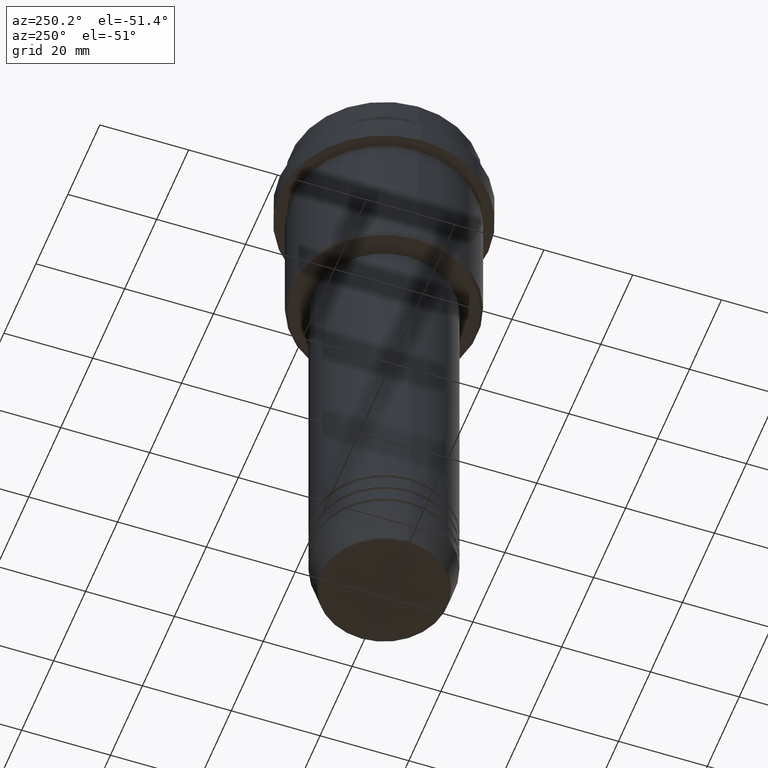
[diagram: clean part render]
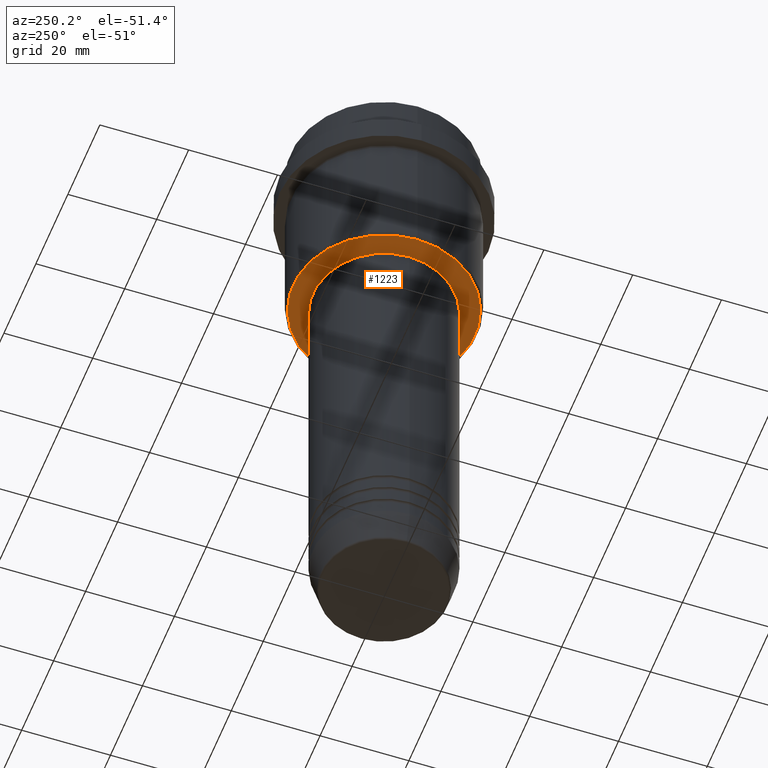
[diagram: same view with one face highlighted and labeled with its STEP entity id]
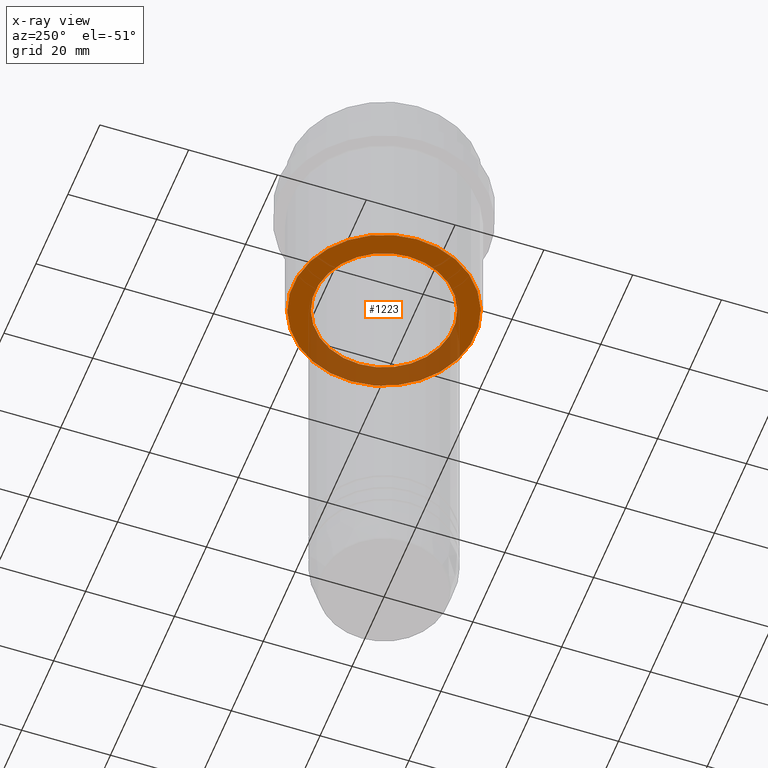
[diagram: x-ray of the same camera — body ghosted, the highlighted face saturated]
A machine part, auxiliary view. The second image highlights one B-rep face of the part: STEP entity #1223.
The next image is the same camera in x-ray: the body ghosted, the highlighted face saturated — about 34% of this face is hidden behind the body in this view.
In plain terms, the highlighted planar face has unit normal (0, 0, -1).
Its self-contained STEP definition (entity closure, byte-faithful):
#17 = ORIENTED_EDGE ( 'NONE', *, *, #367, .T. ) ;
#28 = CIRCLE ( 'NONE', #751, 15.49999999999999645 ) ;
#34 = DIRECTION ( 'NONE',  ( 1.000000000000000000, 0.000000000000000000, 0.000000000000000000 ) ) ;
#123 = CIRCLE ( 'NONE', #257, 20.49999999999997513 ) ;
#167 = ORIENTED_EDGE ( 'NONE', *, *, #1293, .T. ) ;
#198 = EDGE_LOOP ( 'NONE', ( #17, #723 ) ) ;
#201 = DIRECTION ( 'NONE',  ( 0.000000000000000000, 0.000000000000000000, -1.000000000000000000 ) ) ;
#206 = CARTESIAN_POINT ( 'NONE',  ( -15.49999999999999645, 1.898202538678397163E-15, -45.00000000000001421 ) ) ;
#257 = AXIS2_PLACEMENT_3D ( 'NONE', #1407, #548, #658 ) ;
#317 = PLANE ( 'NONE',  #769 ) ;
#367 = EDGE_CURVE ( 'NONE', #829, #875, #672, .T. ) ;
#424 = DIRECTION ( 'NONE',  ( -1.000000000000000000, 0.000000000000000000, 0.000000000000000000 ) ) ;
#440 = DIRECTION ( 'NONE',  ( -0.000000000000000000, -0.000000000000000000, 1.000000000000000000 ) ) ;
#498 = CIRCLE ( 'NONE', #755, 20.49999999999997513 ) ;
#548 = DIRECTION ( 'NONE',  ( 0.000000000000000000, 0.000000000000000000, -1.000000000000000000 ) ) ;
#567 = EDGE_CURVE ( 'NONE', #875, #829, #28, .T. ) ;
#580 = EDGE_LOOP ( 'NONE', ( #1312, #167 ) ) ;
#658 = DIRECTION ( 'NONE',  ( -1.000000000000000000, 0.000000000000000000, 0.000000000000000000 ) ) ;
#672 = CIRCLE ( 'NONE', #1046, 15.49999999999999645 ) ;
#723 = ORIENTED_EDGE ( 'NONE', *, *, #567, .T. ) ;
#740 = VERTEX_POINT ( 'NONE', #1131 ) ;
#743 = CARTESIAN_POINT ( 'NONE',  ( 15.49999999999999645, 0.000000000000000000, -45.00000000000001421 ) ) ;
#751 = AXIS2_PLACEMENT_3D ( 'NONE', #1020, #440, #34 ) ;
#755 = AXIS2_PLACEMENT_3D ( 'NONE', #1400, #1295, #424 ) ;
#769 = AXIS2_PLACEMENT_3D ( 'NONE', #866, #201, #952 ) ;
#829 = VERTEX_POINT ( 'NONE', #743 ) ;
#866 = CARTESIAN_POINT ( 'NONE',  ( 0.000000000000000000, 21.00000000000000000, -45.00000000000001421 ) ) ;
#875 = VERTEX_POINT ( 'NONE', #206 ) ;
#952 = DIRECTION ( 'NONE',  ( -1.000000000000000000, 0.000000000000000000, -0.000000000000000000 ) ) ;
#1012 = DIRECTION ( 'NONE',  ( 1.000000000000000000, 0.000000000000000000, 0.000000000000000000 ) ) ;
#1020 = CARTESIAN_POINT ( 'NONE',  ( 0.000000000000000000, 0.000000000000000000, -45.00000000000001421 ) ) ;
#1023 = VERTEX_POINT ( 'NONE', #1319 ) ;
#1046 = AXIS2_PLACEMENT_3D ( 'NONE', #1248, #1124, #1012 ) ;
#1065 = FACE_BOUND ( 'NONE', #198, .T. ) ;
#1124 = DIRECTION ( 'NONE',  ( -0.000000000000000000, -0.000000000000000000, 1.000000000000000000 ) ) ;
#1131 = CARTESIAN_POINT ( 'NONE',  ( -20.49999999999997513, 2.541142108230756691E-15, -45.00000000000001421 ) ) ;
#1192 = FACE_OUTER_BOUND ( 'NONE', #580, .T. ) ;
#1223 = ADVANCED_FACE ( 'NONE', ( #1192, #1065 ), #317, .T. ) ;
#1242 = EDGE_CURVE ( 'NONE', #1023, #740, #498, .T. ) ;
#1248 = CARTESIAN_POINT ( 'NONE',  ( 0.000000000000000000, 0.000000000000000000, -45.00000000000001421 ) ) ;
#1293 = EDGE_CURVE ( 'NONE', #740, #1023, #123, .T. ) ;
#1295 = DIRECTION ( 'NONE',  ( 0.000000000000000000, 0.000000000000000000, -1.000000000000000000 ) ) ;
#1312 = ORIENTED_EDGE ( 'NONE', *, *, #1242, .T. ) ;
#1319 = CARTESIAN_POINT ( 'NONE',  ( 20.49999999999997513, 0.000000000000000000, -45.00000000000001421 ) ) ;
#1400 = CARTESIAN_POINT ( 'NONE',  ( 0.000000000000000000, 0.000000000000000000, -45.00000000000001421 ) ) ;
#1407 = CARTESIAN_POINT ( 'NONE',  ( 0.000000000000000000, 0.000000000000000000, -45.00000000000001421 ) ) ;